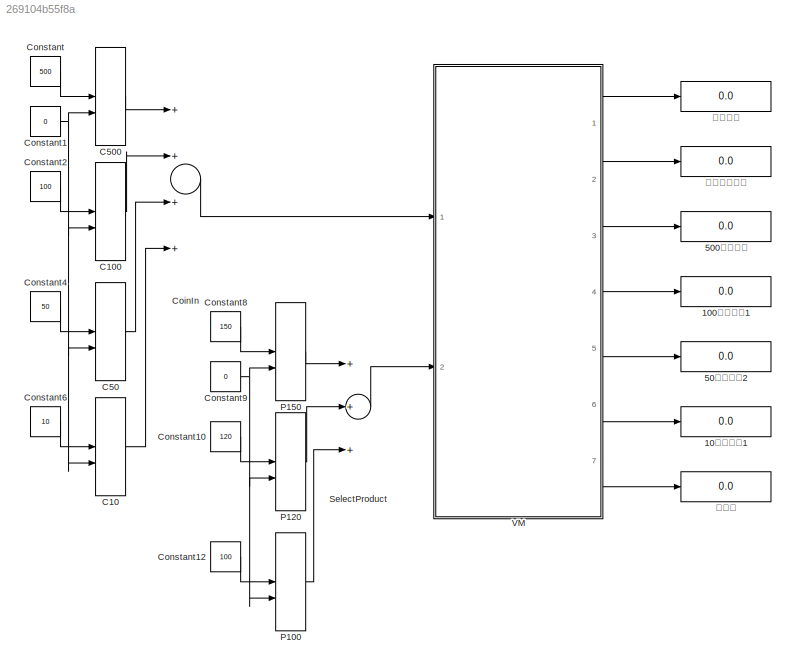
MODEL slx_269104b55f8a
KIND model
CONFIG AbsTol = auto
CONFIG EnableMultiTasking = on
CONFIG FixedStep = 0.1
CONFIG MaxStep = auto
CONFIG MinStep = auto
CONFIG RelTol = 1e-3
CONFIG SampleTimeConstraint = Unconstrained
CONFIG Solver = FixedStepDiscrete
CONFIG SolverName = FixedStepDiscrete
CONFIG StartTime = 0.0
CONFIG StopTime = 1000
BLOCK [Display] 100円玉の数1
  Decimation = 1
  Ports = [1]
BLOCK [Display] 10円玉の数1
  Decimation = 1
  Ports = [1]
BLOCK [Display] 500円玉の数
  Decimation = 1
  Ports = [1]
BLOCK [Display] 50円玉の数2
  Decimation = 1
  Ports = [1]
BLOCK [ManualSwitch] C10
  CurrentSetting = 0
BLOCK [ManualSwitch] C100
  CurrentSetting = 0
BLOCK [ManualSwitch] C50
  CurrentSetting = 0
BLOCK [ManualSwitch] C500
  CurrentSetting = 0
BLOCK [Sum] CoinIn
  InputSameDT = off
  Inputs = ++++
  OutDataTypeStr = Inherit: Inherit via internal rule
  Ports = [4, 1]
  SaturateOnIntegerOverflow = off
BLOCK [Constant] Constant
  Value = 500
BLOCK [Constant] Constant1
  Value = 0
BLOCK [Constant] Constant10
  Value = 120
BLOCK [Constant] Constant12
  Value = 100
BLOCK [Constant] Constant2
  Value = 100
BLOCK [Constant] Constant4
  Value = 50
BLOCK [Constant] Constant6
  Value = 10
BLOCK [Constant] Constant8
  Value = 150
BLOCK [Constant] Constant9
  Value = 0
BLOCK [ManualSwitch] P100
  CurrentSetting = 0
BLOCK [ManualSwitch] P120
  CurrentSetting = 0
BLOCK [ManualSwitch] P150
  CurrentSetting = 0
BLOCK [Sum] SelectProduct
  InputSameDT = off
  Inputs = +++
  OutDataTypeStr = Inherit: Inherit via internal rule
  Ports = [3, 1]
  SaturateOnIntegerOverflow = off
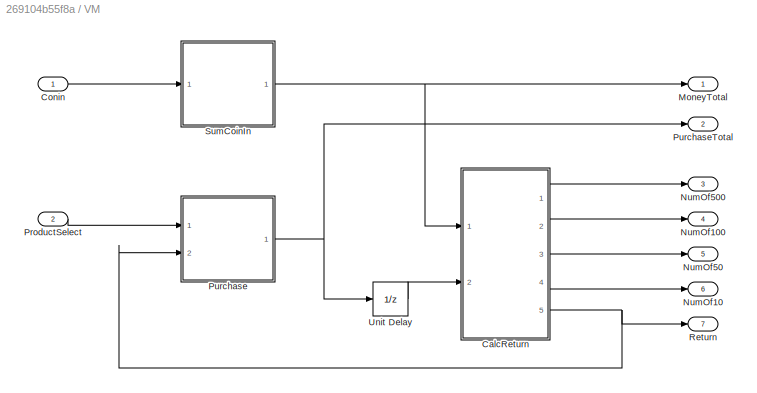
BLOCK [SubSystem] VM
  Ports = [2, 7]
  RequestExecContextInheritance = off
BLOCK [ModelReference] VM/CalcReturn
  ModelNameDialog = CalcReturn.slx
  ModelReferenceVersion = 1.182
  Ports = [2, 5]
BLOCK [Inport] VM/Conin
  IconDisplay = Port number
BLOCK [Outport] VM/MoneyTotal
  IconDisplay = Port number
BLOCK [Outport] VM/NumOf10
  IconDisplay = Port number
  Port = 6
BLOCK [Outport] VM/NumOf100
  IconDisplay = Port number
  Port = 4
BLOCK [Outport] VM/NumOf50
  IconDisplay = Port number
  Port = 5
BLOCK [Outport] VM/NumOf500
  IconDisplay = Port number
  Port = 3
BLOCK [Inport] VM/ProductSelect
  IconDisplay = Port number
  Port = 2
BLOCK [ModelReference] VM/Purchase
  ModelNameDialog = Purchase.slx
  ModelReferenceVersion = 1.182
  Ports = [2, 1]
BLOCK [Outport] VM/PurchaseTotal
  IconDisplay = Port number
  Port = 2
BLOCK [Outport] VM/Return
  IconDisplay = Port number
  Port = 7
BLOCK [ModelReference] VM/SumCoinIn
  ModelNameDialog = SumCoinIn.slx
  ModelReferenceVersion = 1.181
  Ports = [1, 1]
BLOCK [UnitDelay] VM/Unit Delay
  InputProcessing = Elements as channels (sample based)
  SampleTime = -1
BLOCK [Display] お釣り
  Decimation = 1
  Ports = [1]
BLOCK [Display] 入金合計
  Decimation = 1
  Ports = [1]
BLOCK [Display] 購入金額合計
  Decimation = 1
  Ports = [1]
LINE C100:1 -> CoinIn:2
LINE C10:1 -> CoinIn:4
LINE C500:1 -> CoinIn:1
LINE C50:1 -> CoinIn:3
LINE CoinIn:1 -> VM:1
LINE Constant10:1 -> P120:1
LINE Constant12:1 -> P100:1
NET Constant1:1 -> C100:2, C10:2, C500:2, C50:2
LINE Constant2:1 -> C100:1
LINE Constant4:1 -> C50:1
LINE Constant6:1 -> C10:1
LINE Constant8:1 -> P150:1
NET Constant9:1 -> P100:2, P120:2, P150:2
LINE Constant:1 -> C500:1
LINE P100:1 -> SelectProduct:3
LINE P120:1 -> SelectProduct:2
LINE P150:1 -> SelectProduct:1
LINE SelectProduct:1 -> VM:2
LINE VM/CalcReturn:1 -> VM/NumOf500:1
LINE VM/CalcReturn:2 -> VM/NumOf100:1
LINE VM/CalcReturn:3 -> VM/NumOf50:1
LINE VM/CalcReturn:4 -> VM/NumOf10:1
NET VM/CalcReturn:5 -> VM/Purchase:2, VM/Return:1
LINE VM/Conin:1 -> VM/SumCoinIn:1
LINE VM/ProductSelect:1 -> VM/Purchase:1
NET VM/Purchase:1 -> VM/PurchaseTotal:1, VM/Unit Delay:1
NET VM/SumCoinIn:1 -> VM/CalcReturn:1, VM/MoneyTotal:1
LINE VM/Unit Delay:1 -> VM/CalcReturn:2
LINE VM:1 -> 入金合計:1
LINE VM:2 -> 購入金額合計:1
LINE VM:3 -> 500円玉の数:1
LINE VM:4 -> 100円玉の数1:1
LINE VM:5 -> 50円玉の数2:1
LINE VM:6 -> 10円玉の数1:1
LINE VM:7 -> お釣り:1
note: NET lines group one-source signal fan-out (src -> all destinations, sorted); 1:1 wires keep LINE
